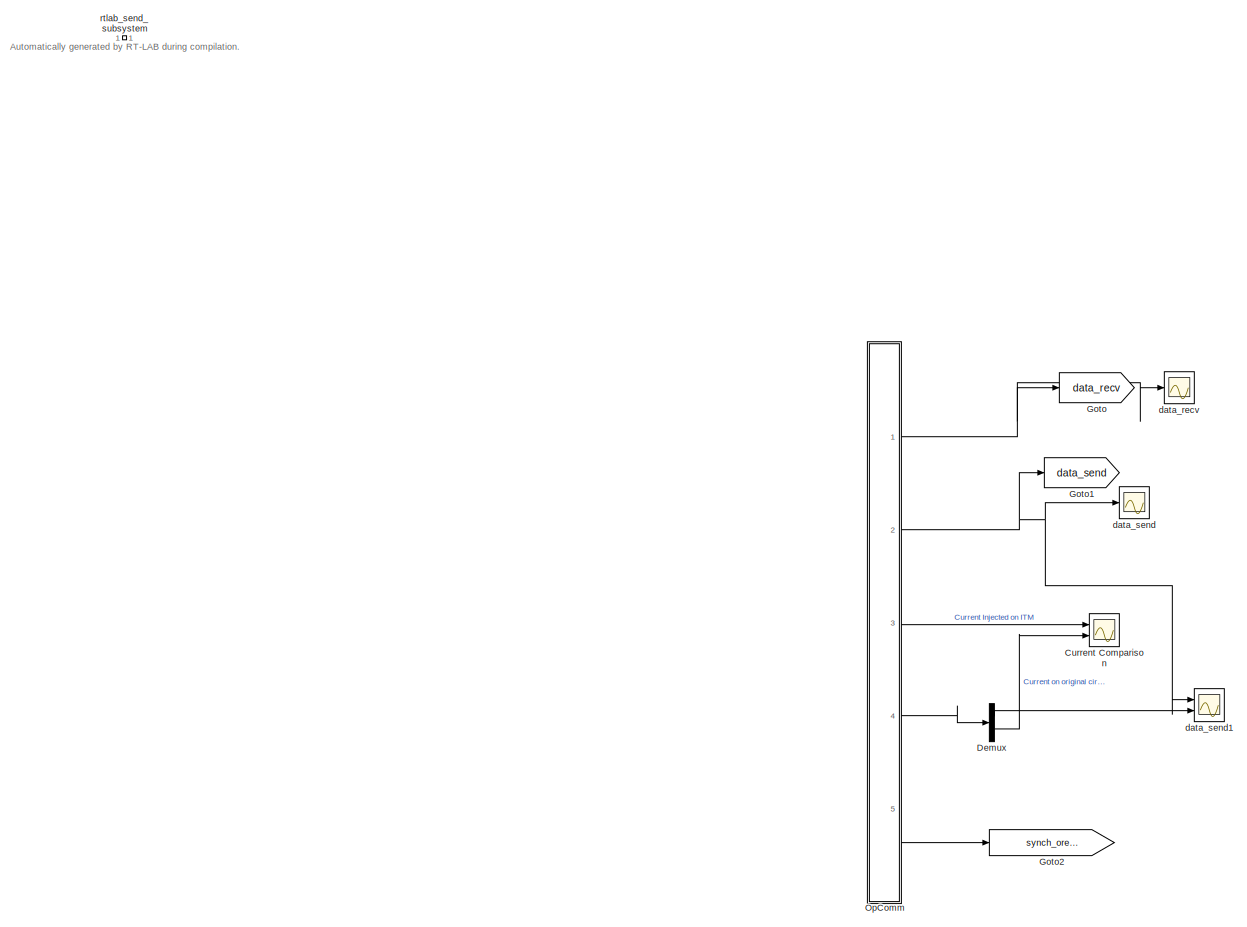
[diagram: root canvas - part 1/2, left side, full height]
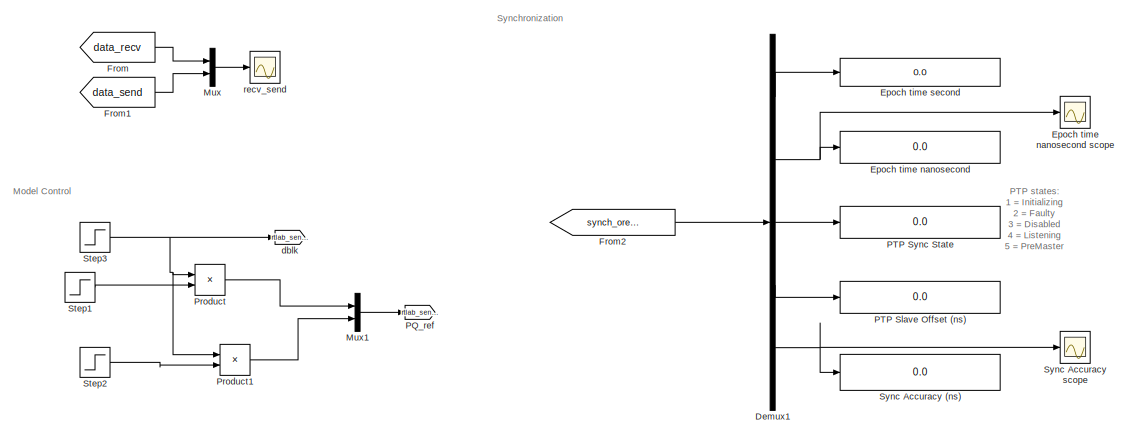
[diagram: root canvas - part 2/2, middle right region]
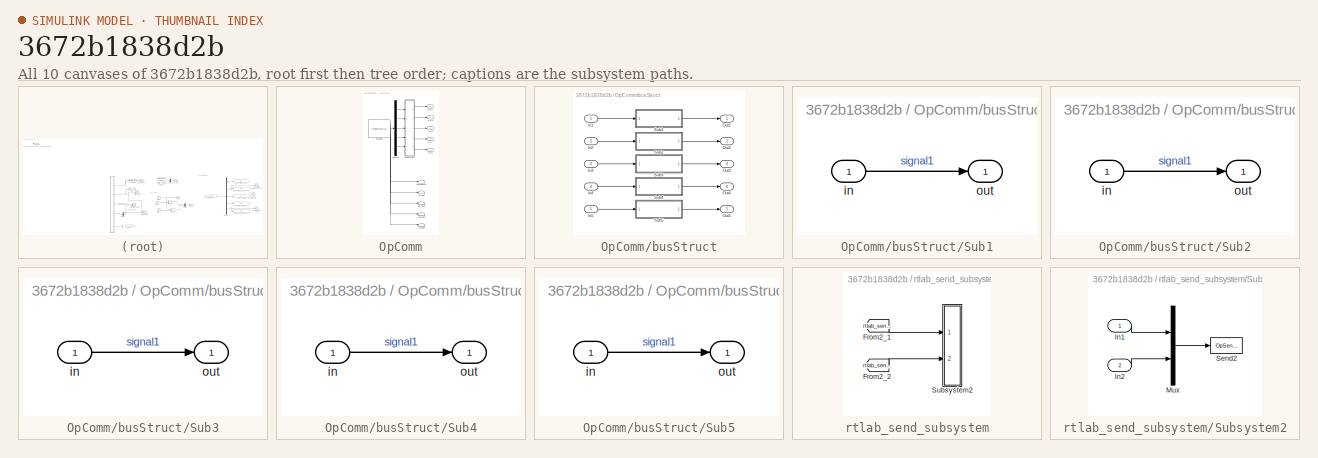
[diagram: thumbnail index - all 10 canvases of the model, root first then tree order]
MODEL slx_3672b1838d2b
KIND model
CONFIG AbsTol = auto
CONFIG EnableMultiTasking = off
CONFIG FixedStep = 5e-05
CONFIG InitFcn = %\n% Script for validation of swtiching model design with it's respective\n% average model.\n%\n% Here it is presented the design of the inverter to the 6 kW Fuel Cell\n% model. \n\n%%% Initialization %%%\n\n\n% ------------------------------------- %\n% ---------- Inverter Design ---------- %\n% ------------------------------------- %\n\n%%%% Nominal Parameters %%%%\n\nPnom = 50e3;                               ...<+1978ch>
CONFIG MaxStep = auto
CONFIG MinStep = auto
CONFIG PostLoadFcn = %\n% Script for validation of swtiching model design with it's respective\n% average model.\n%\n% Here it is presented the design of the inverter to the 6 kW Fuel Cell\n% model. \n\n%%% Initialization %%%\n\n\n% ------------------------------------- %\n% ---------- Inverter Design ---------- %\n% ------------------------------------- %\n\n%%%% Nominal Parameters %%%%\n\nPnom = 50e3;                               ...<+1978ch>
CONFIG RelTol = 1e-3
CONFIG SampleTimeConstraint = Unconstrained
CONFIG SolverName = ode4
CONFIG StartTime = 0.0
CONFIG StopTime = inf
BLOCK [Scope] Current Comparison
  Floating = off
  NumInputPorts = 2
  Ports = [2]
  ScopeSpecificationString = Simulink.scopes.TimeScopeBlockCfg('CurrentConfiguration', extmgr.ConfigurationSet(extmgr.Configuration('Core','General UI',true),extmgr.Configuration('Core','Source UI',true),extmgr.Configuration('Sources','WiredSimulink',true,'DataLoggingVariableName','ScopeData2','DataLoggingLimitDataPoints',true),extmgr.Configuration('Visuals','Time Domain',true,'SerializedDisplays',{struct('MinYLimReal','-470....<+1631ch>
BLOCK [Demux] Demux
  Outputs = 2
  Ports = [1, 2]
BLOCK [Demux] Demux1
  Outputs = 5
  Ports = [1, 5]
BLOCK [Display] Epoch time nanosecond
  Decimation = 1
  Ports = [1]
BLOCK [Scope] Epoch time nanosecond scope
  Floating = off
  NumInputPorts = 1
  Ports = [1]
  ScopeSpecificationString = Simulink.scopes.TimeScopeBlockCfg('CurrentConfiguration', extmgr.ConfigurationSet(extmgr.Configuration('Core','General UI',true),extmgr.Configuration('Core','Source UI',true),extmgr.Configuration('Sources','WiredSimulink',true,'DataLoggingSaveFormat','StructureWithTime','DataLoggingLimitDataPoints',true,'DataLoggingDecimation','1','DataLoggingDecimateData',true,'DataLoggingVariableName','ScopeData...<+911ch>
BLOCK [Display] Epoch time second
  Decimation = 1
  Format = long
  Ports = [1]
BLOCK [From] From
  GotoTag = data_recv
BLOCK [From] From1
  GotoTag = data_send
BLOCK [From] From2
  GotoTag = synch_oregano
BLOCK [Goto] Goto
  GotoTag = data_recv
BLOCK [Goto] Goto1
  GotoTag = data_send
BLOCK [Goto] Goto2
  GotoTag = synch_oregano
BLOCK [Mux] Mux
  DisplayOption = bar
  Inputs = 2
  Ports = [2, 1]
BLOCK [Mux] Mux1
  DisplayOption = bar
  Inputs = 2
  Ports = [2, 1]
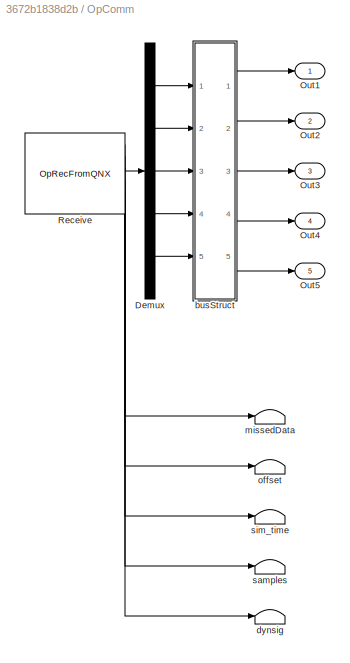
BLOCK [SubSystem] OpComm
  Ports = [0, 5]
  RequestExecContextInheritance = off
BLOCK [Demux] OpComm/Demux
  Outputs = [6  6  3  6  5]
  Ports = [1, 5]
BLOCK [Outport] OpComm/Out1
BLOCK [Outport] OpComm/Out2
  Port = 2
BLOCK [Outport] OpComm/Out3
  Port = 3
BLOCK [Outport] OpComm/Out4
  Port = 4
BLOCK [Outport] OpComm/Out5
  Port = 5
BLOCK [Reference] OpComm/Receive  REF=opal_lib/Communication/OpRecFromQNX
  Ports = [0, 6]
  SourceBlock = opal_lib/Communication/OpRecFromQNX
  SourceType = OPAL Receive Icon
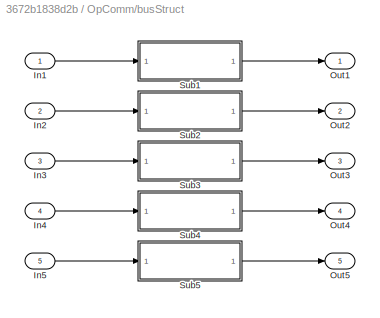
BLOCK [SubSystem] OpComm/busStruct
  Ports = [5, 5]
  RequestExecContextInheritance = off
BLOCK [Inport] OpComm/busStruct/In1
BLOCK [Inport] OpComm/busStruct/In2
  Port = 2
BLOCK [Inport] OpComm/busStruct/In3
  Port = 3
BLOCK [Inport] OpComm/busStruct/In4
  Port = 4
BLOCK [Inport] OpComm/busStruct/In5
  Port = 5
BLOCK [Outport] OpComm/busStruct/Out1
BLOCK [Outport] OpComm/busStruct/Out2
  Port = 2
BLOCK [Outport] OpComm/busStruct/Out3
  Port = 3
BLOCK [Outport] OpComm/busStruct/Out4
  Port = 4
BLOCK [Outport] OpComm/busStruct/Out5
  Port = 5
BLOCK [SubSystem] OpComm/busStruct/Sub1
  Ports = [1, 1]
  RequestExecContextInheritance = off
BLOCK [Inport] OpComm/busStruct/Sub1/in
BLOCK [Outport] OpComm/busStruct/Sub1/out
BLOCK [SubSystem] OpComm/busStruct/Sub2
  Ports = [1, 1]
  RequestExecContextInheritance = off
BLOCK [Inport] OpComm/busStruct/Sub2/in
BLOCK [Outport] OpComm/busStruct/Sub2/out
BLOCK [SubSystem] OpComm/busStruct/Sub3
  Ports = [1, 1]
  RequestExecContextInheritance = off
BLOCK [Inport] OpComm/busStruct/Sub3/in
BLOCK [Outport] OpComm/busStruct/Sub3/out
BLOCK [SubSystem] OpComm/busStruct/Sub4
  Ports = [1, 1]
  RequestExecContextInheritance = off
BLOCK [Inport] OpComm/busStruct/Sub4/in
BLOCK [Outport] OpComm/busStruct/Sub4/out
BLOCK [SubSystem] OpComm/busStruct/Sub5
  Ports = [1, 1]
  RequestExecContextInheritance = off
BLOCK [Inport] OpComm/busStruct/Sub5/in
BLOCK [Outport] OpComm/busStruct/Sub5/out
BLOCK [Terminator] OpComm/dynsig
BLOCK [Terminator] OpComm/missedData
BLOCK [Terminator] OpComm/offset
BLOCK [Terminator] OpComm/samples
BLOCK [Terminator] OpComm/sim_time
BLOCK [Goto] PQ_ref
  GotoTag = rtlab_send_2
  TagVisibility = global
BLOCK [Display] PTP Slave Offset (ns)
  Decimation = 1
  Ports = [1]
BLOCK [Display] PTP Sync State
  Decimation = 1
  Ports = [1]
BLOCK [Product] Product
  Ports = [2, 1]
BLOCK [Product] Product1
  Ports = [2, 1]
BLOCK [Step] Step1
  After = 25e3
  SampleTime = 0
  Time = 2
BLOCK [Step] Step2
  After = 10e3
  SampleTime = 0
  Time = 3
BLOCK [Step] Step3
  SampleTime = 0
BLOCK [Display] Sync Accuracy (ns)
  Decimation = 1
  Format = long
  Ports = [1]
BLOCK [Scope] Sync Accuracy scope
  Floating = off
  NumInputPorts = 1
  Ports = [1]
  ScopeSpecificationString = Simulink.scopes.TimeScopeBlockCfg('CurrentConfiguration', extmgr.ConfigurationSet(extmgr.Configuration('Core','General UI',true),extmgr.Configuration('Core','Source UI',true),extmgr.Configuration('Sources','WiredSimulink',true,'DataLoggingVariableName','ScopeData2','DataLoggingSaveFormat','StructureWithTime','DataLoggingLimitDataPoints',true,'DataLoggingDecimation','1','DataLoggingDecimateData',tr...<+911ch>
BLOCK [Scope] data_recv
  Floating = off
  NumInputPorts = 1
  Ports = [1]
  ScopeSpecificationString = Simulink.scopes.TimeScopeBlockCfg('CurrentConfiguration', extmgr.ConfigurationSet(extmgr.Configuration('Core','General UI',true),extmgr.Configuration('Core','Source UI',true),extmgr.Configuration('Sources','WiredSimulink',true,'DataLoggingVariableName','ScopeData3','DataLoggingSaveFormat','StructureWithTime','DataLoggingLimitDataPoints',true,'DataLoggingDecimation','1','DataLoggingDecimateData',tr...<+1768ch>
BLOCK [Scope] data_send
  Floating = off
  NumInputPorts = 1
  Ports = [1]
  ScopeSpecificationString = Simulink.scopes.TimeScopeBlockCfg('CurrentConfiguration', extmgr.ConfigurationSet(extmgr.Configuration('Core','General UI',true),extmgr.Configuration('Core','Source UI',true),extmgr.Configuration('Sources','WiredSimulink',true,'DataLoggingVariableName','ScopeData4','DataLoggingSaveFormat','StructureWithTime','DataLoggingLimitDataPoints',true,'DataLoggingDecimation','1','DataLoggingDecimateData',tr...<+1945ch>
BLOCK [Scope] data_send1
  Floating = off
  NumInputPorts = 2
  Ports = [2]
  ScopeSpecificationString = Simulink.scopes.TimeScopeBlockCfg('CurrentConfiguration', extmgr.ConfigurationSet(extmgr.Configuration('Core','General UI',true),extmgr.Configuration('Core','Source UI',true),extmgr.Configuration('Sources','WiredSimulink',true,'DataLoggingVariableName','ScopeData1','DataLoggingSaveFormat','StructureWithTime','DataLoggingLimitDataPoints',true,'DataLoggingDecimation','1','DataLoggingDecimateData',tr...<+2088ch>
BLOCK [Goto] dblk
  GotoTag = rtlab_send_1
  TagVisibility = global
BLOCK [Scope] recv_send
  Floating = off
  NumInputPorts = 1
  Ports = [1]
  ScopeSpecificationString = Simulink.scopes.TimeScopeBlockCfg('CurrentConfiguration', extmgr.ConfigurationSet(extmgr.Configuration('Core','General UI',true),extmgr.Configuration('Core','Source UI',true),extmgr.Configuration('Sources','WiredSimulink',true,'DataLoggingSaveFormat','StructureWithTime','DataLoggingLimitDataPoints',true,'DataLoggingDecimation','1','DataLoggingDecimateData',true),extmgr.Configuration('Visuals','Tim...<+1840ch>
BLOCK [SubSystem] rtlab_send_subsystem
  Ports = []
  Priority = -100
  RequestExecContextInheritance = off
BLOCK [From] rtlab_send_subsystem/From2_1
  GotoTag = rtlab_send_1
  TagVisibility = global
BLOCK [From] rtlab_send_subsystem/From2_2
  GotoTag = rtlab_send_2
  TagVisibility = global
BLOCK [SubSystem] rtlab_send_subsystem/Subsystem2
  Ports = [2]
  RequestExecContextInheritance = off
BLOCK [Inport] rtlab_send_subsystem/Subsystem2/In1
  PortDimensions = 1
BLOCK [Inport] rtlab_send_subsystem/Subsystem2/In2
  Port = 2
  PortDimensions = 2
BLOCK [Mux] rtlab_send_subsystem/Subsystem2/Mux
  Inputs = 2
  Ports = [2, 1]
BLOCK [Reference] rtlab_send_subsystem/Subsystem2/Send2  REF=opal_lib/Communication/OpSendPar
ToQNX
  Ports = [1]
  SourceBlock = opal_lib/Communication/OpSendPar\nToQNX
  SourceType = OPAL Send Icon
ANNOTATION (root): Automatically generated by RT-LAB during compilation.
ANNOTATION (root): Model Control
ANNOTATION (root): PTP states: 1 = Initializing 2 = Faulty 3 = Disabled 4 = Listening 5 = PreMaster 6 = Master 7 = Passive 8 = Uncalibrated 9 = Slave
ANNOTATION (root): Synchronization
LINE Demux1:1 -> Epoch time second:1
NET Demux1:2 -> Epoch time nanosecond scope:1, Epoch time nanosecond:1
LINE Demux1:3 -> PTP Sync State:1
LINE Demux1:4 -> PTP Slave Offset (ns):1
NET Demux1:5 -> Sync Accuracy (ns):1, Sync Accuracy scope:1
LINE Demux:1 -> data_send1:2
LINE Demux:2 -> Current Comparison:2
LINE From1:1 -> Mux:2
LINE From2:1 -> Demux1:1
LINE From:1 -> Mux:1
LINE Mux1:1 -> PQ_ref:1
LINE Mux:1 -> recv_send:1
LINE OpComm/Demux:1 -> OpComm/busStruct:1
LINE OpComm/Demux:2 -> OpComm/busStruct:2
LINE OpComm/Demux:3 -> OpComm/busStruct:3
LINE OpComm/Demux:4 -> OpComm/busStruct:4
LINE OpComm/Demux:5 -> OpComm/busStruct:5
LINE OpComm/Receive:1 -> OpComm/Demux:1
LINE OpComm/Receive:2 -> OpComm/missedData:1
LINE OpComm/Receive:3 -> OpComm/offset:1
LINE OpComm/Receive:4 -> OpComm/sim_time:1
LINE OpComm/Receive:5 -> OpComm/samples:1
LINE OpComm/Receive:6 -> OpComm/dynsig:1
LINE OpComm/busStruct/In1:1 -> OpComm/busStruct/Sub1:1
LINE OpComm/busStruct/In2:1 -> OpComm/busStruct/Sub2:1
LINE OpComm/busStruct/In3:1 -> OpComm/busStruct/Sub3:1
LINE OpComm/busStruct/In4:1 -> OpComm/busStruct/Sub4:1
LINE OpComm/busStruct/In5:1 -> OpComm/busStruct/Sub5:1
LINE OpComm/busStruct/Sub1/in:1 -> OpComm/busStruct/Sub1/out:1
LINE OpComm/busStruct/Sub1:1 -> OpComm/busStruct/Out1:1
LINE OpComm/busStruct/Sub2/in:1 -> OpComm/busStruct/Sub2/out:1
LINE OpComm/busStruct/Sub2:1 -> OpComm/busStruct/Out2:1
LINE OpComm/busStruct/Sub3/in:1 -> OpComm/busStruct/Sub3/out:1
LINE OpComm/busStruct/Sub3:1 -> OpComm/busStruct/Out3:1
LINE OpComm/busStruct/Sub4/in:1 -> OpComm/busStruct/Sub4/out:1
LINE OpComm/busStruct/Sub4:1 -> OpComm/busStruct/Out4:1
LINE OpComm/busStruct/Sub5/in:1 -> OpComm/busStruct/Sub5/out:1
LINE OpComm/busStruct/Sub5:1 -> OpComm/busStruct/Out5:1
LINE OpComm/busStruct:1 -> OpComm/Out1:1
LINE OpComm/busStruct:2 -> OpComm/Out2:1
LINE OpComm/busStruct:3 -> OpComm/Out3:1
LINE OpComm/busStruct:4 -> OpComm/Out4:1
LINE OpComm/busStruct:5 -> OpComm/Out5:1
NET OpComm:1 -> Goto:1, data_recv:1
NET OpComm:2 -> Goto1:1, data_send1:1, data_send:1
LINE OpComm:3 -> Current Comparison:1
LINE OpComm:4 -> Demux:1
LINE OpComm:5 -> Goto2:1
LINE Product1:1 -> Mux1:2
LINE Product:1 -> Mux1:1
LINE Step1:1 -> Product:2
LINE Step2:1 -> Product1:2
NET Step3:1 -> Product1:1, Product:1, dblk:1
LINE rtlab_send_subsystem/From2_1:1 -> rtlab_send_subsystem/Subsystem2:1
LINE rtlab_send_subsystem/From2_2:1 -> rtlab_send_subsystem/Subsystem2:2
LINE rtlab_send_subsystem/Subsystem2/In1:1 -> rtlab_send_subsystem/Subsystem2/Mux:1
LINE rtlab_send_subsystem/Subsystem2/In2:1 -> rtlab_send_subsystem/Subsystem2/Mux:2
LINE rtlab_send_subsystem/Subsystem2/Mux:1 -> rtlab_send_subsystem/Subsystem2/Send2:1
note: NET lines group one-source signal fan-out (src -> all destinations, sorted); 1:1 wires keep LINE
